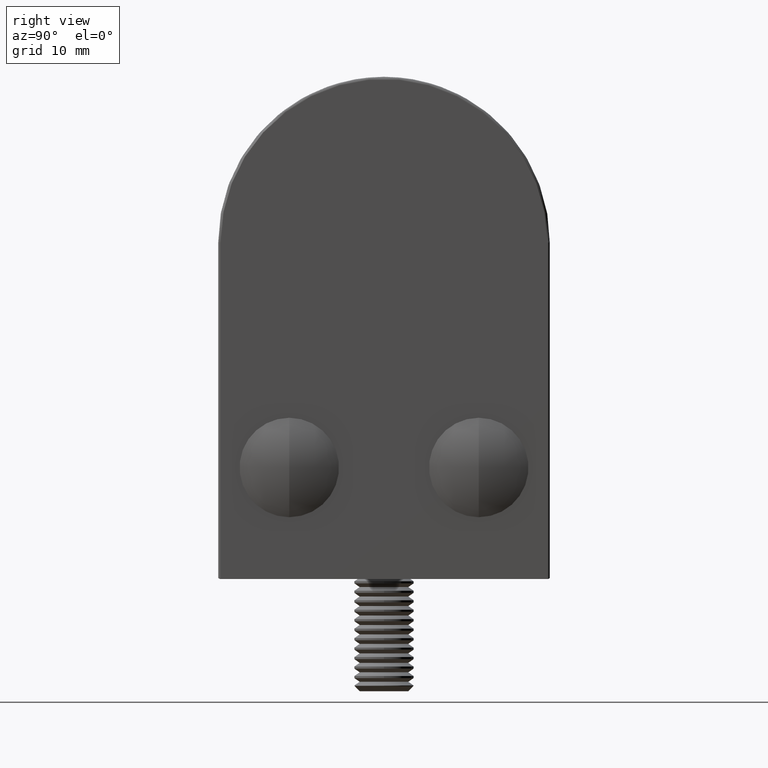
[diagram: clean part render]
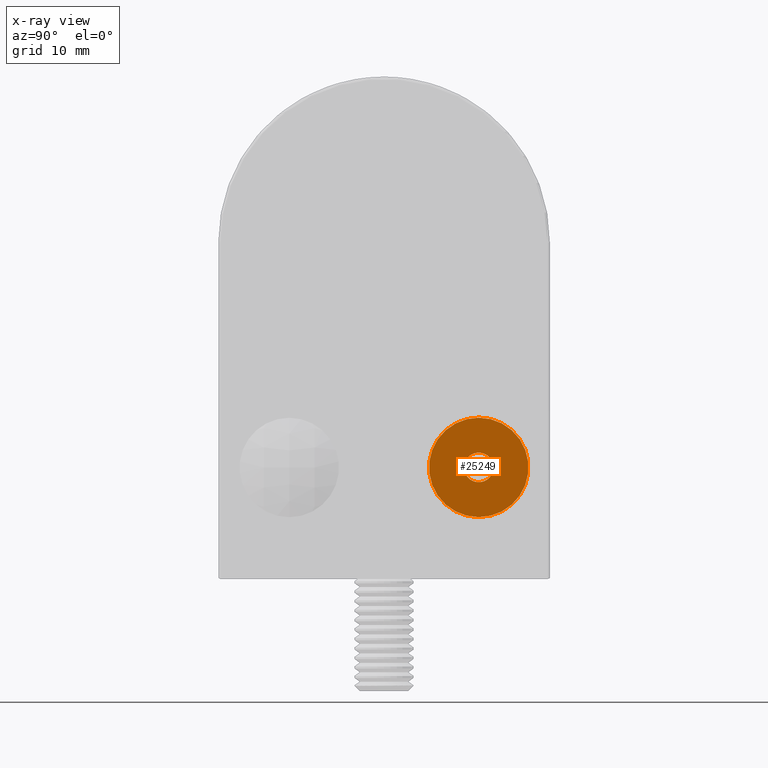
[diagram: x-ray — body ghosted, one internal face saturated and labeled with its STEP entity id]
A machine part, right view, then the same camera in x-ray: the body is ghosted and one INTERNAL B-rep face — a face not visible from any outside direction — is saturated and labeled: STEP entity #25249.
In plain terms, the highlighted planar face has unit normal (-1, 0, -0).
Its self-contained STEP definition (entity closure, byte-faithful):
#428 = DIRECTION ( 'NONE',  ( 0.0000000000000000000, -1.000000000000000000, 0.0000000000000000000 ) ) ;
#1412 = CARTESIAN_POINT ( 'NONE',  ( 0.0000000000000000000, 0.0000000000000000000, 0.0000000000000000000 ) ) ;
#2483 = AXIS2_PLACEMENT_3D ( 'NONE', #32165, #47064, #61143 ) ;
#6414 = AXIS2_PLACEMENT_3D ( 'NONE', #11842, #45063, #16580 ) ;
#6998 = DIRECTION ( 'NONE',  ( 0.0000000000000000000, -1.000000000000000000, 0.0000000000000000000 ) ) ;
#7263 = CARTESIAN_POINT ( 'NONE',  ( 1.530808498934191600E-016, 0.0000000000000000000, -1.250000000000000000 ) ) ;
#8183 = EDGE_LOOP ( 'NONE', ( #34240, #8380 ) ) ;
#8380 = ORIENTED_EDGE ( 'NONE', *, *, #29048, .F. ) ;
#10127 = VERTEX_POINT ( 'NONE', #61368 ) ;
#10410 = CARTESIAN_POINT ( 'NONE',  ( -4.200000000000000200, 8.673617379884035500E-016, 5.143516556418884900E-016 ) ) ;
#11842 = CARTESIAN_POINT ( 'NONE',  ( 0.0000000000000000000, 0.0000000000000000000, 0.0000000000000000000 ) ) ;
#12595 = EDGE_CURVE ( 'NONE', #32828, #34688, #27085, .T. ) ;
#13765 = VERTEX_POINT ( 'NONE', #7263 ) ;
#16580 = DIRECTION ( 'NONE',  ( 0.0000000000000000000, 0.0000000000000000000, -1.000000000000000000 ) ) ;
#22080 = CARTESIAN_POINT ( 'NONE',  ( 0.0000000000000000000, 0.0000000000000000000, 0.0000000000000000000 ) ) ;
#24321 = CARTESIAN_POINT ( 'NONE',  ( 4.200000000000000200, 8.673617379884035500E-016, 0.0000000000000000000 ) ) ;
#25249 = ADVANCED_FACE ( 'NONE', ( #37973, #25954 ), #31964, .T. ) ;
#25954 = FACE_OUTER_BOUND ( 'NONE', #39865, .T. ) ;
#26247 = DIRECTION ( 'NONE',  ( 0.0000000000000000000, 0.0000000000000000000, -1.000000000000000000 ) ) ;
#27085 = CIRCLE ( 'NONE', #30719, 4.200000000000001100 ) ;
#27974 = AXIS2_PLACEMENT_3D ( 'NONE', #1412, #6998, #44115 ) ;
#28027 = EDGE_CURVE ( 'NONE', #10127, #13765, #41423, .T. ) ;
#29048 = EDGE_CURVE ( 'NONE', #13765, #10127, #57701, .T. ) ;
#30719 = AXIS2_PLACEMENT_3D ( 'NONE', #22080, #45402, #26247 ) ;
#31205 = CIRCLE ( 'NONE', #6414, 4.200000000000001100 ) ;
#31964 = PLANE ( 'NONE',  #2483 ) ;
#32165 = CARTESIAN_POINT ( 'NONE',  ( 0.0000000000000000000, 0.0000000000000000000, 0.0000000000000000000 ) ) ;
#32828 = VERTEX_POINT ( 'NONE', #24321 ) ;
#34240 = ORIENTED_EDGE ( 'NONE', *, *, #28027, .F. ) ;
#34688 = VERTEX_POINT ( 'NONE', #10410 ) ;
#37808 = EDGE_CURVE ( 'NONE', #34688, #32828, #31205, .T. ) ;
#37973 = FACE_BOUND ( 'NONE', #8183, .T. ) ;
#39865 = EDGE_LOOP ( 'NONE', ( #41845, #61192 ) ) ;
#41423 = CIRCLE ( 'NONE', #54122, 1.250000000000000000 ) ;
#41845 = ORIENTED_EDGE ( 'NONE', *, *, #12595, .T. ) ;
#44115 = DIRECTION ( 'NONE',  ( 0.0000000000000000000, 0.0000000000000000000, -1.000000000000000000 ) ) ;
#45063 = DIRECTION ( 'NONE',  ( -0.0000000000000000000, -1.000000000000000000, -0.0000000000000000000 ) ) ;
#45402 = DIRECTION ( 'NONE',  ( -0.0000000000000000000, -1.000000000000000000, -0.0000000000000000000 ) ) ;
#47064 = DIRECTION ( 'NONE',  ( 0.0000000000000000000, -1.000000000000000000, -0.0000000000000000000 ) ) ;
#48072 = CARTESIAN_POINT ( 'NONE',  ( 0.0000000000000000000, 0.0000000000000000000, 0.0000000000000000000 ) ) ;
#52793 = DIRECTION ( 'NONE',  ( 0.0000000000000000000, 0.0000000000000000000, -1.000000000000000000 ) ) ;
#54122 = AXIS2_PLACEMENT_3D ( 'NONE', #48072, #428, #52793 ) ;
#57701 = CIRCLE ( 'NONE', #27974, 1.250000000000000000 ) ;
#61143 = DIRECTION ( 'NONE',  ( 0.0000000000000000000, 0.0000000000000000000, -1.000000000000000000 ) ) ;
#61192 = ORIENTED_EDGE ( 'NONE', *, *, #37808, .T. ) ;
#61368 = CARTESIAN_POINT ( 'NONE',  ( 0.0000000000000000000, 0.0000000000000000000, 1.250000000000000000 ) ) ;